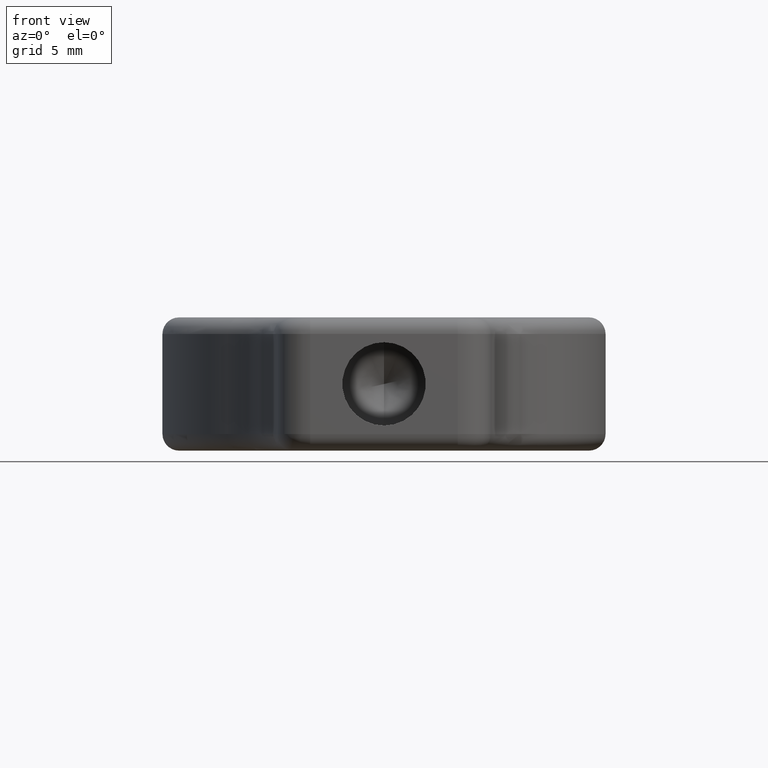
[diagram: clean part render]
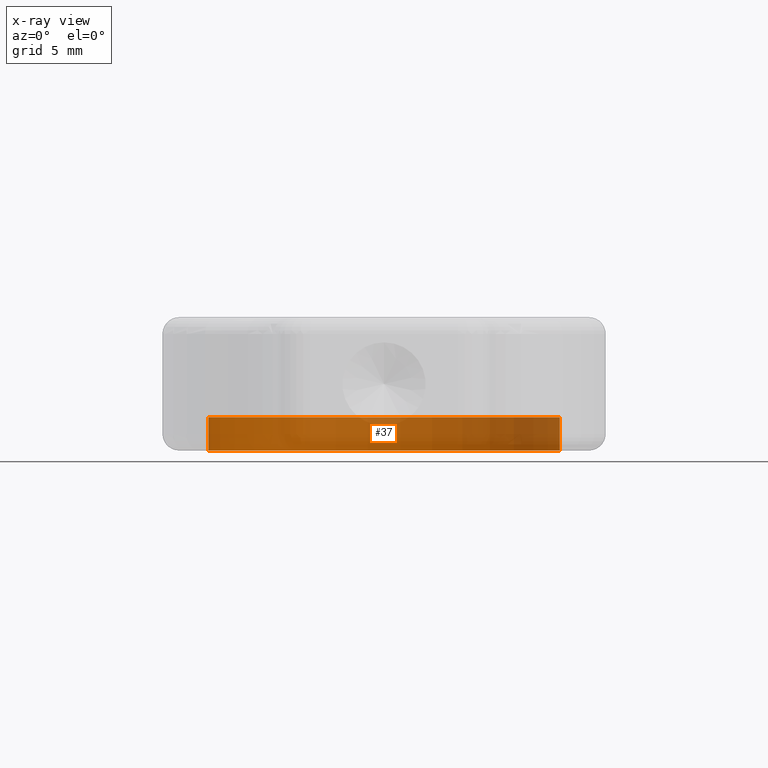
[diagram: x-ray — body ghosted, one internal face saturated and labeled with its STEP entity id]
A machine part, front view, then the same camera in x-ray: the body is ghosted and one INTERNAL B-rep face — a face not visible from any outside direction — is saturated and labeled: STEP entity #37.
In plain terms, the highlighted cylindrical surface (partial cylindrical patch) has radius 10.55 mm, axis along (0, 0, -1).
Its self-contained STEP definition (entity closure, byte-faithful):
#22 = EDGE_CURVE ( 'NONE', #328, #391, #959, .T. ) ;
#37 = ADVANCED_FACE ( 'NONE', ( #1057 ), #648, .T. ) ;
#80 = VECTOR ( 'NONE', #1218, 1000.000000000000000 ) ;
#102 = ORIENTED_EDGE ( 'NONE', *, *, #2045, .F. ) ;
#232 = DIRECTION ( 'NONE',  ( -1.000000000000000000, 1.644287654954319300E-016, 0.0000000000000000000 ) ) ;
#259 = CARTESIAN_POINT ( 'NONE',  ( 2.223772548633339100, 1.633371797953784300, 30.00000000000000400 ) ) ;
#328 = VERTEX_POINT ( 'NONE', #672 ) ;
#383 = LINE ( 'NONE', #1593, #80 ) ;
#391 = VERTEX_POINT ( 'NONE', #1921 ) ;
#396 = AXIS2_PLACEMENT_3D ( 'NONE', #259, #592, #2000 ) ;
#564 = ORIENTED_EDGE ( 'NONE', *, *, #22, .T. ) ;
#581 = CARTESIAN_POINT ( 'NONE',  ( 12.77377254863333900, 1.633371797953782500, 32.00000000000000000 ) ) ;
#583 = EDGE_CURVE ( 'NONE', #391, #1228, #889, .T. ) ;
#592 = DIRECTION ( 'NONE',  ( 0.0000000000000000000, 0.0000000000000000000, 1.000000000000000000 ) ) ;
#648 = CYLINDRICAL_SURFACE ( 'NONE', #2134, 10.55000000000000100 ) ;
#672 = CARTESIAN_POINT ( 'NONE',  ( 12.77377254863333900, 1.633371797953782500, 32.00000000000000000 ) ) ;
#732 = AXIS2_PLACEMENT_3D ( 'NONE', #775, #1278, #232 ) ;
#775 = CARTESIAN_POINT ( 'NONE',  ( 2.223772548633339100, 1.633371797953784300, 32.00000000000000000 ) ) ;
#889 = CIRCLE ( 'NONE', #396, 10.55000000000000100 ) ;
#934 = VERTEX_POINT ( 'NONE', #1257 ) ;
#952 = DIRECTION ( 'NONE',  ( 0.0000000000000000000, 0.0000000000000000000, -1.000000000000000000 ) ) ;
#959 = LINE ( 'NONE', #581, #2115 ) ;
#1057 = FACE_OUTER_BOUND ( 'NONE', #1863, .T. ) ;
#1106 = DIRECTION ( 'NONE',  ( 0.0000000000000000000, 0.0000000000000000000, -1.000000000000000000 ) ) ;
#1199 = ORIENTED_EDGE ( 'NONE', *, *, #1886, .F. ) ;
#1218 = DIRECTION ( 'NONE',  ( 0.0000000000000000000, 0.0000000000000000000, -1.000000000000000000 ) ) ;
#1228 = VERTEX_POINT ( 'NONE', #1889 ) ;
#1257 = CARTESIAN_POINT ( 'NONE',  ( -8.326227451366660800, 1.633371797953784700, 32.00000000000000000 ) ) ;
#1270 = ORIENTED_EDGE ( 'NONE', *, *, #583, .T. ) ;
#1278 = DIRECTION ( 'NONE',  ( 0.0000000000000000000, 0.0000000000000000000, 1.000000000000000000 ) ) ;
#1301 = CARTESIAN_POINT ( 'NONE',  ( 2.223772548633339100, 1.633371797953784300, 32.00000000000000000 ) ) ;
#1592 = CIRCLE ( 'NONE', #732, 10.55000000000000100 ) ;
#1593 = CARTESIAN_POINT ( 'NONE',  ( -8.326227451366660800, 1.633371797953784700, 32.00000000000000000 ) ) ;
#1863 = EDGE_LOOP ( 'NONE', ( #1199, #102, #564, #1270 ) ) ;
#1886 = EDGE_CURVE ( 'NONE', #934, #1228, #383, .T. ) ;
#1889 = CARTESIAN_POINT ( 'NONE',  ( -8.326227451366660800, 1.633371797953784700, 30.00000000000000400 ) ) ;
#1921 = CARTESIAN_POINT ( 'NONE',  ( 12.77377254863333900, 1.633371797953782500, 30.00000000000000400 ) ) ;
#2000 = DIRECTION ( 'NONE',  ( -1.000000000000000000, 1.644287654954319300E-016, 0.0000000000000000000 ) ) ;
#2045 = EDGE_CURVE ( 'NONE', #328, #934, #1592, .T. ) ;
#2115 = VECTOR ( 'NONE', #1106, 1000.000000000000000 ) ;
#2134 = AXIS2_PLACEMENT_3D ( 'NONE', #1301, #952, #2192 ) ;
#2192 = DIRECTION ( 'NONE',  ( 1.000000000000000000, -1.644287654954319300E-016, 0.0000000000000000000 ) ) ;